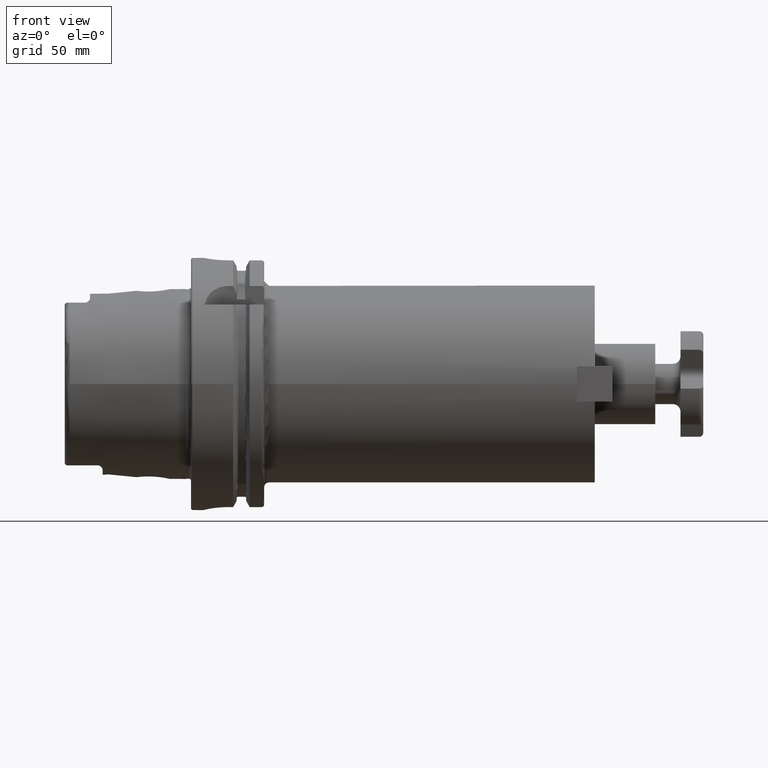
[diagram: clean part render]
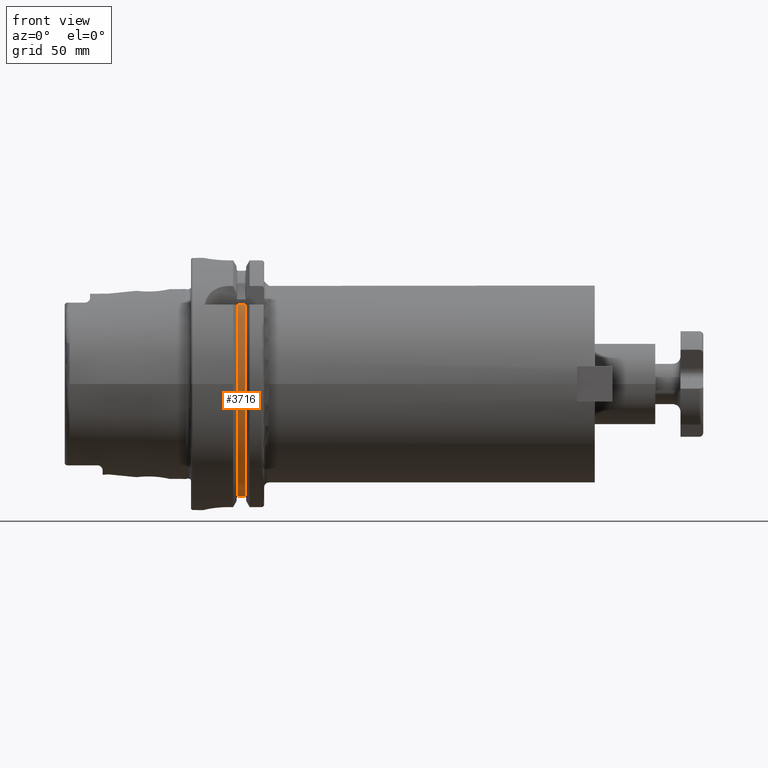
[diagram: same view with one face highlighted and labeled with its STEP entity id]
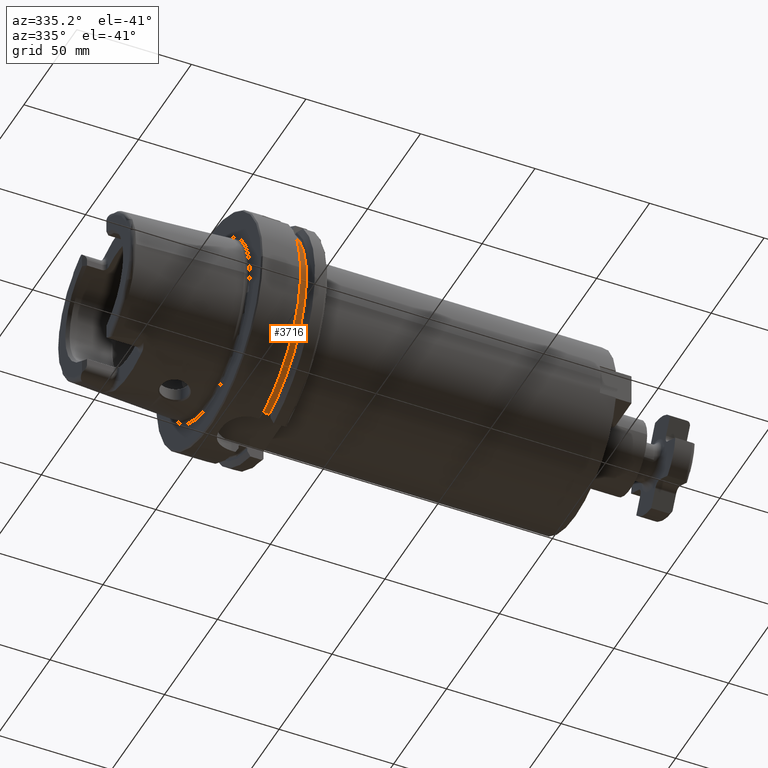
[diagram: same view with one face highlighted and labeled with its STEP entity id]
A machine part, front view. The second image highlights one B-rep face of the part: STEP entity #3716.
A second angle (auxiliary view) of the same face is appended — the face is thin or edge-on in the first view.
In plain terms, the highlighted cylindrical surface (partial cylindrical patch) has radius 46 mm, axis along (1, 0, 0).
Its self-contained STEP definition (entity closure, byte-faithful):
#828=CYLINDRICAL_SURFACE('',#4203,46.);
#970=FACE_OUTER_BOUND('',#1170,.T.);
#1170=EDGE_LOOP('',(#3294,#3295,#3296,#3297));
#1309=LINE('',#6574,#1501);
#1331=LINE('',#6821,#1523);
#1501=VECTOR('',#4741,10.);
#1523=VECTOR('',#4819,10.);
#1753=CIRCLE('',#4202,46.);
#1754=CIRCLE('',#4204,46.);
#1985=VERTEX_POINT('',#6562);
#1986=VERTEX_POINT('',#6573);
#2026=VERTEX_POINT('',#6809);
#2027=VERTEX_POINT('',#6820);
#2343=EDGE_CURVE('',#1986,#1985,#1309,.T.);
#2399=EDGE_CURVE('',#2027,#2026,#1331,.T.);
#2494=EDGE_CURVE('',#1985,#2027,#1753,.T.);
#2495=EDGE_CURVE('',#1986,#2026,#1754,.T.);
#3294=ORIENTED_EDGE('',*,*,#2343,.T.);
#3295=ORIENTED_EDGE('',*,*,#2494,.T.);
#3296=ORIENTED_EDGE('',*,*,#2399,.T.);
#3297=ORIENTED_EDGE('',*,*,#2495,.F.);
#3716=ADVANCED_FACE('',(#970),#828,.T.);
#4202=AXIS2_PLACEMENT_3D('',#7104,#5069,#5070);
#4203=AXIS2_PLACEMENT_3D('',#7105,#5071,#5072);
#4204=AXIS2_PLACEMENT_3D('',#7106,#5073,#5074);
#4741=DIRECTION('',(-1.,0.,0.));
#4819=DIRECTION('',(1.,0.,0.));
#5069=DIRECTION('center_axis',(1.,0.,0.));
#5070=DIRECTION('ref_axis',(0.,0.,-1.));
#5071=DIRECTION('center_axis',(1.,0.,0.));
#5072=DIRECTION('ref_axis',(0.,-0.958952815598936,-0.283565684550992));
#5073=DIRECTION('center_axis',(1.,0.,0.));
#5074=DIRECTION('ref_axis',(0.,0.,-1.));
#6562=CARTESIAN_POINT('',(18.625,-33.5223805837235,31.5));
#6573=CARTESIAN_POINT('',(21.375,-33.5223805837235,31.5));
#6574=CARTESIAN_POINT('',(20.,-33.5223805837235,31.5));
#6809=CARTESIAN_POINT('',(21.375,-11.,-44.6654228682546));
#6820=CARTESIAN_POINT('',(18.625,-11.,-44.6654228682546));
#6821=CARTESIAN_POINT('',(20.,-11.,-44.6654228682546));
#7104=CARTESIAN_POINT('Origin',(18.625,0.,0.));
#7105=CARTESIAN_POINT('Origin',(20.,0.,0.));
#7106=CARTESIAN_POINT('Origin',(21.375,0.,0.));